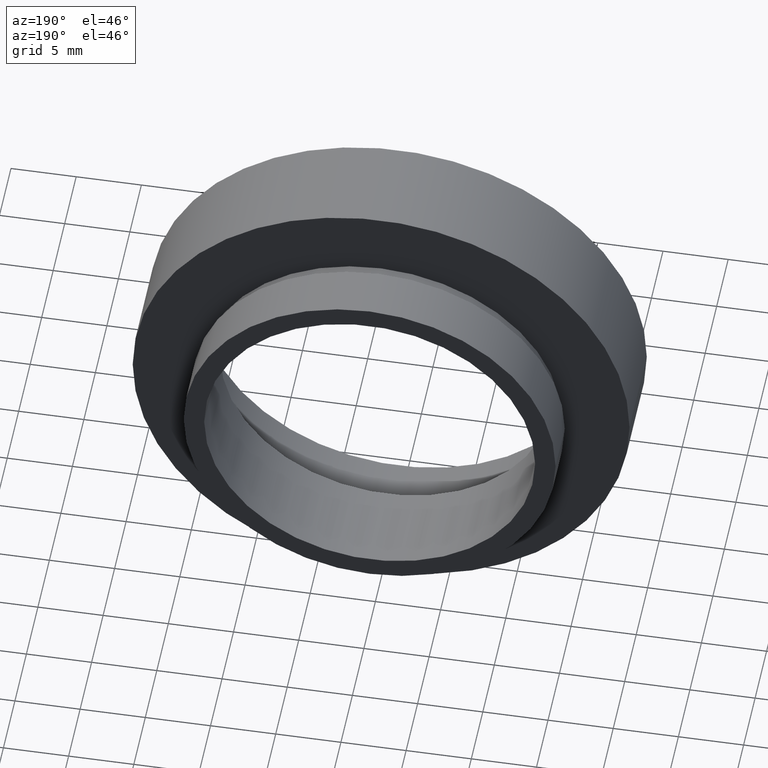
[diagram: clean part render]
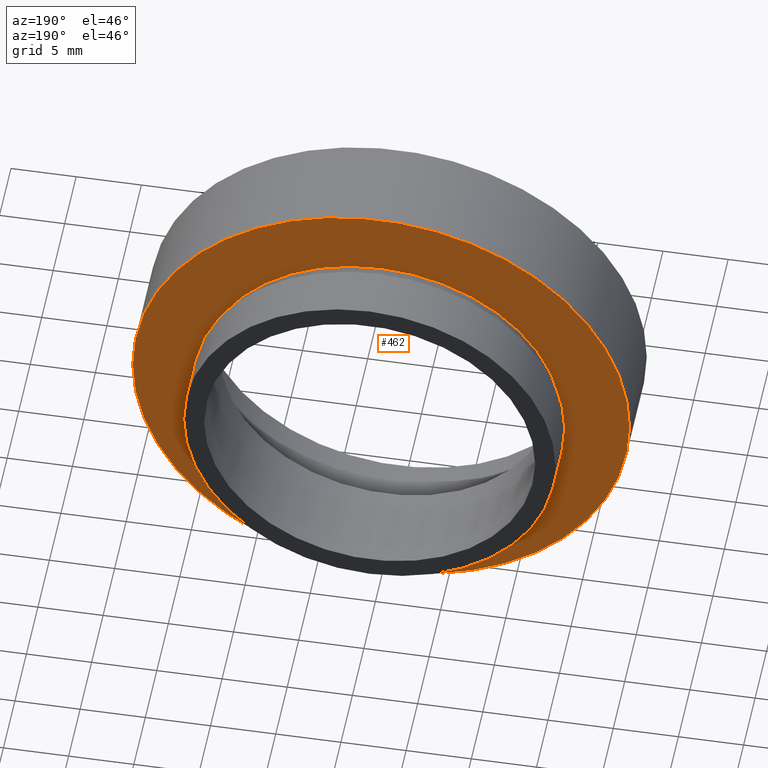
[diagram: same view with one face highlighted and labeled with its STEP entity id]
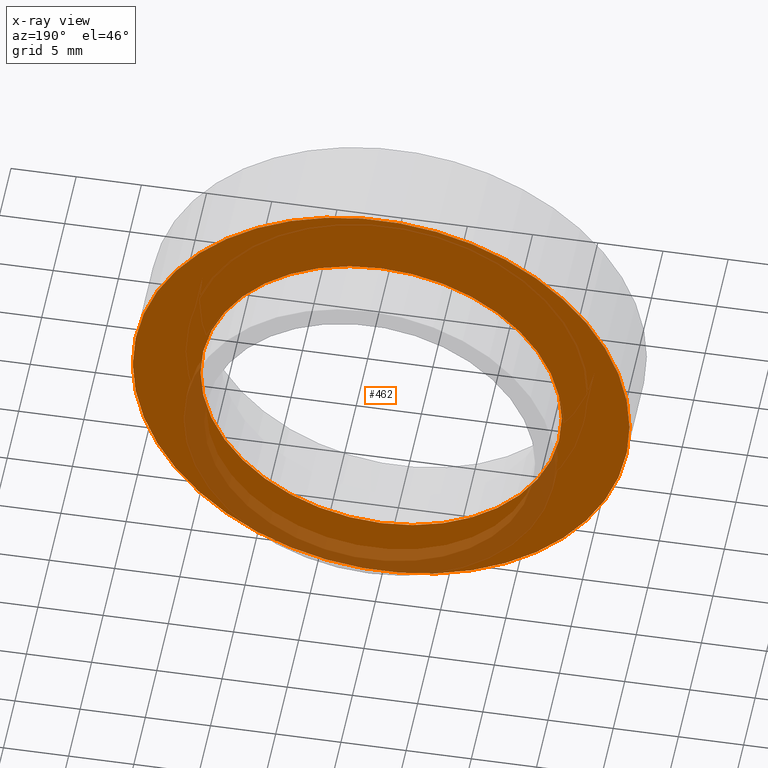
[diagram: x-ray of the same camera — body ghosted, the highlighted face saturated]
A machine part, auxiliary view. The second image highlights one B-rep face of the part: STEP entity #462.
The next image is the same camera in x-ray: the body ghosted, the highlighted face saturated — about 19% of this face is hidden behind the body in this view.
In plain terms, the highlighted planar face has unit normal (0, -1, 0).
Its self-contained STEP definition (entity closure, byte-faithful):
#47 = DIRECTION ( 'NONE',  ( -1.224646799147351000E-016, 1.000000000000000000, -0.0000000000000000000 ) ) ;
#51 = CARTESIAN_POINT ( 'NONE',  ( 13.85000000000000100, 7.500000000000000000, 1.696135816819084000E-015 ) ) ;
#60 = DIRECTION ( 'NONE',  ( 1.000000000000000000, 1.224646799147351000E-016, 0.0000000000000000000 ) ) ;
#63 = CARTESIAN_POINT ( 'NONE',  ( 13.85000000000000100, 7.499999999999999100, 0.0000000000000000000 ) ) ;
#67 = CARTESIAN_POINT ( 'NONE',  ( -13.84999999999999800, 7.499999999999996400, 0.0000000000000000000 ) ) ;
#87 = CARTESIAN_POINT ( 'NONE',  ( 1.149455719078123100E-015, 7.499999999999996400, 0.0000000000000000000 ) ) ;
#110 = FACE_OUTER_BOUND ( 'NONE', #396, .T. ) ;
#126 = CIRCLE ( 'NONE', #181, 13.85000000000000000 ) ;
#128 = EDGE_CURVE ( 'NONE', #326, #589, #569, .T. ) ;
#136 = DIRECTION ( 'NONE',  ( -1.000000000000000000, -1.365923996832131400E-016, 0.0000000000000000000 ) ) ;
#142 = CIRCLE ( 'NONE', #373, 13.85000000000000000 ) ;
#173 = PLANE ( 'NONE',  #385 ) ;
#177 = VERTEX_POINT ( 'NONE', #51 ) ;
#178 = EDGE_CURVE ( 'NONE', #589, #326, #216, .T. ) ;
#181 = AXIS2_PLACEMENT_3D ( 'NONE', #240, #435, #335 ) ;
#194 = AXIS2_PLACEMENT_3D ( 'NONE', #620, #47, #202 ) ;
#202 = DIRECTION ( 'NONE',  ( -1.000000000000000000, -1.365923996832131400E-016, 0.0000000000000000000 ) ) ;
#205 = DIRECTION ( 'NONE',  ( -1.224646799147351000E-016, 1.000000000000000000, -0.0000000000000000000 ) ) ;
#216 = CIRCLE ( 'NONE', #194, 19.05000000000000400 ) ;
#240 = CARTESIAN_POINT ( 'NONE',  ( 1.149455719078122700E-015, 7.499999999999998200, 0.0000000000000000000 ) ) ;
#241 = EDGE_CURVE ( 'NONE', #177, #443, #126, .T. ) ;
#302 = ORIENTED_EDGE ( 'NONE', *, *, #398, .F. ) ;
#303 = FACE_BOUND ( 'NONE', #378, .T. ) ;
#326 = VERTEX_POINT ( 'NONE', #439 ) ;
#330 = ORIENTED_EDGE ( 'NONE', *, *, #128, .T. ) ;
#335 = DIRECTION ( 'NONE',  ( -1.000000000000000000, -1.252507924893001600E-016, 0.0000000000000000000 ) ) ;
#373 = AXIS2_PLACEMENT_3D ( 'NONE', #489, #205, #585 ) ;
#378 = EDGE_LOOP ( 'NONE', ( #302, #528 ) ) ;
#385 = AXIS2_PLACEMENT_3D ( 'NONE', #63, #399, #60 ) ;
#396 = EDGE_LOOP ( 'NONE', ( #509, #330 ) ) ;
#398 = EDGE_CURVE ( 'NONE', #443, #177, #142, .T. ) ;
#399 = DIRECTION ( 'NONE',  ( 1.224646799147351000E-016, -1.000000000000000000, 0.0000000000000000000 ) ) ;
#426 = DIRECTION ( 'NONE',  ( -1.224646799147351000E-016, 1.000000000000000000, -0.0000000000000000000 ) ) ;
#435 = DIRECTION ( 'NONE',  ( -1.224646799147351000E-016, 1.000000000000000000, -0.0000000000000000000 ) ) ;
#439 = CARTESIAN_POINT ( 'NONE',  ( 19.05000000000000400, 7.499999999999999100, 2.332952152375708400E-015 ) ) ;
#443 = VERTEX_POINT ( 'NONE', #67 ) ;
#447 = AXIS2_PLACEMENT_3D ( 'NONE', #87, #426, #136 ) ;
#462 = ADVANCED_FACE ( 'NONE', ( #303, #110 ), #173, .F. ) ;
#484 = CARTESIAN_POINT ( 'NONE',  ( -19.05000000000000400, 7.499999999999993800, 0.0000000000000000000 ) ) ;
#489 = CARTESIAN_POINT ( 'NONE',  ( 1.149455719078122700E-015, 7.499999999999998200, 0.0000000000000000000 ) ) ;
#509 = ORIENTED_EDGE ( 'NONE', *, *, #178, .T. ) ;
#528 = ORIENTED_EDGE ( 'NONE', *, *, #241, .F. ) ;
#569 = CIRCLE ( 'NONE', #447, 19.05000000000000400 ) ;
#585 = DIRECTION ( 'NONE',  ( -1.000000000000000000, -1.252507924893001600E-016, 0.0000000000000000000 ) ) ;
#589 = VERTEX_POINT ( 'NONE', #484 ) ;
#620 = CARTESIAN_POINT ( 'NONE',  ( 1.149455719078123100E-015, 7.499999999999996400, 0.0000000000000000000 ) ) ;